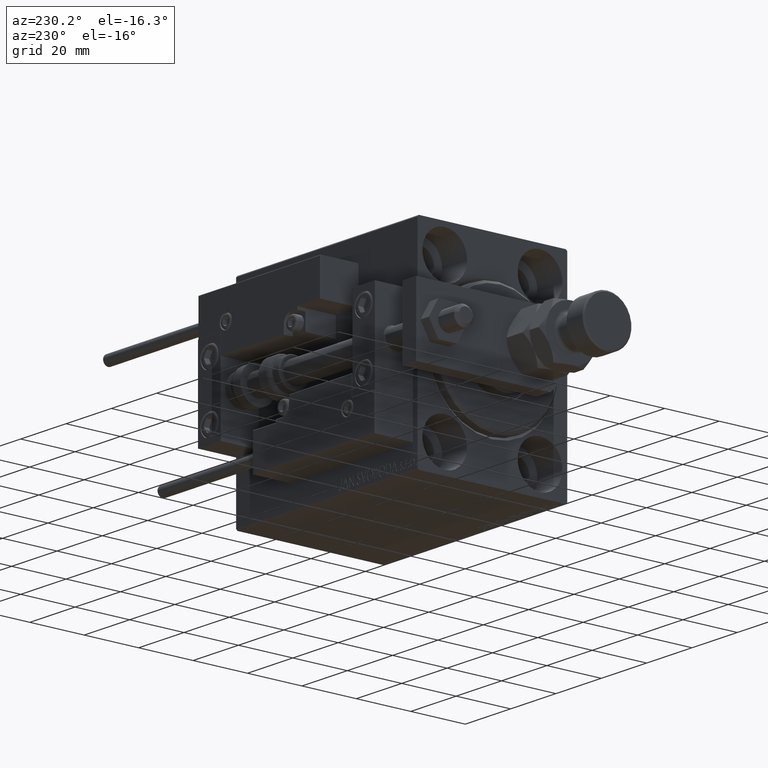
[diagram: clean part render]
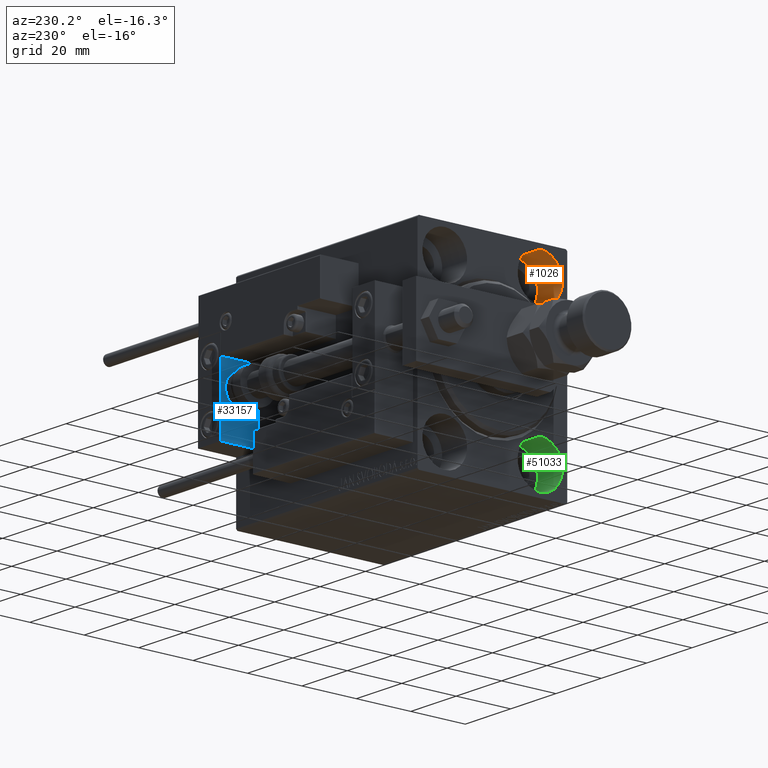
[diagram: same view with three faces highlighted in distinct colors, each labeled with its STEP entity id]
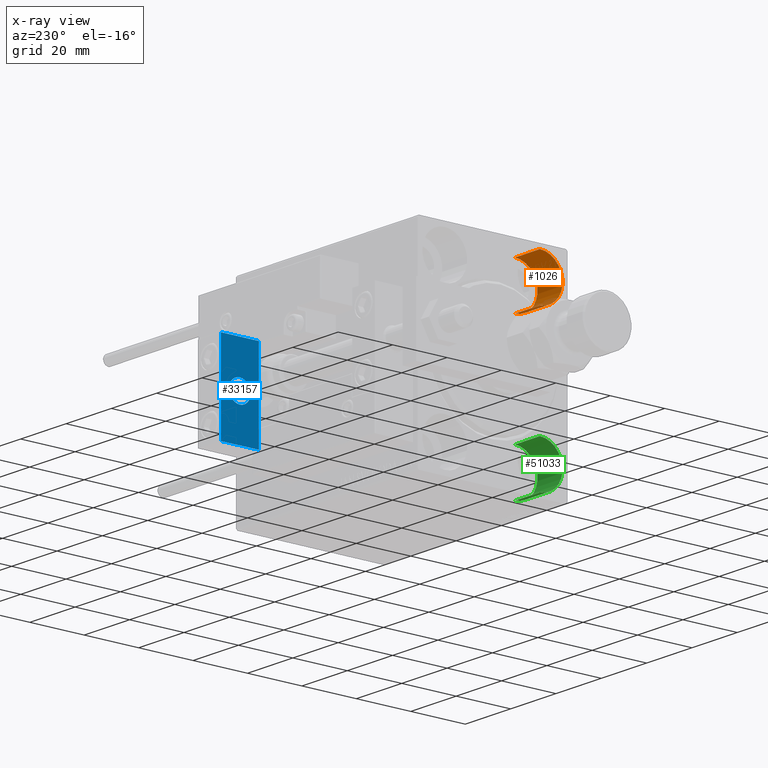
[diagram: x-ray of the same camera — body ghosted, the three highlighted faces saturated]
A machine part, auxiliary view with three faces highlighted in distinct colors.
The next image is the same camera in x-ray (body ghosted, the three faces saturated) — at least one of them is partly hidden behind the body in this view.
Their STEP definitions:

[orange] entity #1026 — the highlighted cylindrical surface (edge-blend (fillet) strip) has radius 8.25 mm, axis along (-1, -0, -0).
#713 = CARTESIAN_POINT ( 'NONE',  ( 0.000000000000000000, -17.49999999999999645, 19.25000000000000000 ) ) ;
#1026 = ADVANCED_FACE ( 'NONE', ( #40162 ), #43573, .F. ) ;
#1872 = DIRECTION ( 'NONE',  ( 0.000000000000000000, 0.000000000000000000, 1.000000000000000000 ) ) ;
#1965 = EDGE_LOOP ( 'NONE', ( #43594, #42676, #22659, #44982 ) ) ;
#4449 = DIRECTION ( 'NONE',  ( -1.000000000000000000, -0.000000000000000000, -0.000000000000000000 ) ) ;
#4582 = VERTEX_POINT ( 'NONE', #713 ) ;
#6257 = EDGE_CURVE ( 'NONE', #10211, #37629, #7334, .T. ) ;
#6563 = CARTESIAN_POINT ( 'NONE',  ( 11.00000000000000000, -17.49999999999999645, 27.49999999999999645 ) ) ;
#7262 = DIRECTION ( 'NONE',  ( 0.000000000000000000, 0.000000000000000000, 1.000000000000000000 ) ) ;
#7315 = VERTEX_POINT ( 'NONE', #41829 ) ;
#7334 = CIRCLE ( 'NONE', #36469, 8.249999999999992895 ) ;
#9970 = AXIS2_PLACEMENT_3D ( 'NONE', #44336, #4449, #16432 ) ;
#10211 = VERTEX_POINT ( 'NONE', #47728 ) ;
#10552 = EDGE_CURVE ( 'NONE', #4582, #7315, #42399, .T. ) ;
#13339 = LINE ( 'NONE', #20893, #49046 ) ;
#14555 = DIRECTION ( 'NONE',  ( -1.000000000000000000, 0.000000000000000000, 0.000000000000000000 ) ) ;
#16432 = DIRECTION ( 'NONE',  ( 0.000000000000000000, 0.000000000000000000, 1.000000000000000000 ) ) ;
#17510 = DIRECTION ( 'NONE',  ( -1.000000000000000000, -0.000000000000000000, -0.000000000000000000 ) ) ;
#20893 = CARTESIAN_POINT ( 'NONE',  ( 11.00000000000000000, -17.49999999999999645, 19.25000000000000000 ) ) ;
#22436 = EDGE_CURVE ( 'NONE', #37629, #7315, #32173, .T. ) ;
#22659 = ORIENTED_EDGE ( 'NONE', *, *, #10552, .T. ) ;
#26814 = CARTESIAN_POINT ( 'NONE',  ( 0.000000000000000000, -17.49999999999999645, 27.49999999999999645 ) ) ;
#28009 = CARTESIAN_POINT ( 'NONE',  ( 11.00000000000000000, -17.49999999999999645, 35.74999999999999289 ) ) ;
#32173 = LINE ( 'NONE', #28009, #32666 ) ;
#32666 = VECTOR ( 'NONE', #43662, 1000.000000000000000 ) ;
#36469 = AXIS2_PLACEMENT_3D ( 'NONE', #6563, #37588, #1872 ) ;
#36531 = AXIS2_PLACEMENT_3D ( 'NONE', #26814, #14555, #7262 ) ;
#37588 = DIRECTION ( 'NONE',  ( -1.000000000000000000, 0.000000000000000000, 0.000000000000000000 ) ) ;
#37629 = VERTEX_POINT ( 'NONE', #46553 ) ;
#40162 = FACE_OUTER_BOUND ( 'NONE', #1965, .T. ) ;
#41829 = CARTESIAN_POINT ( 'NONE',  ( 0.000000000000000000, -17.49999999999999645, 35.74999999999999289 ) ) ;
#42399 = CIRCLE ( 'NONE', #36531, 8.249999999999992895 ) ;
#42676 = ORIENTED_EDGE ( 'NONE', *, *, #49542, .T. ) ;
#43573 = CYLINDRICAL_SURFACE ( 'NONE', #9970, 8.249999999999992895 ) ;
#43594 = ORIENTED_EDGE ( 'NONE', *, *, #6257, .F. ) ;
#43662 = DIRECTION ( 'NONE',  ( -1.000000000000000000, -0.000000000000000000, -0.000000000000000000 ) ) ;
#44336 = CARTESIAN_POINT ( 'NONE',  ( 11.00000000000000000, -17.49999999999999645, 27.49999999999999645 ) ) ;
#44982 = ORIENTED_EDGE ( 'NONE', *, *, #22436, .F. ) ;
#46553 = CARTESIAN_POINT ( 'NONE',  ( 11.00000000000000000, -17.49999999999999645, 35.74999999999999289 ) ) ;
#47728 = CARTESIAN_POINT ( 'NONE',  ( 11.00000000000000000, -17.49999999999999645, 19.25000000000000000 ) ) ;
#49046 = VECTOR ( 'NONE', #17510, 1000.000000000000000 ) ;
#49542 = EDGE_CURVE ( 'NONE', #10211, #4582, #13339, .T. ) ;

[blue] entity #33157 — the highlighted planar face has unit normal (-1, 0, 0).
#2189 = ORIENTED_EDGE ( 'NONE', *, *, #7358, .F. ) ;
#3702 = CARTESIAN_POINT ( 'NONE',  ( 0.000000000000000000, 0.000000000000000000, 4.000000000000000000 ) ) ;
#3840 = EDGE_CURVE ( 'NONE', #41724, #19627, #17435, .T. ) ;
#4818 = LINE ( 'NONE', #20713, #24851 ) ;
#4950 = VECTOR ( 'NONE', #39962, 1000.000000000000000 ) ;
#7144 = EDGE_CURVE ( 'NONE', #40522, #22566, #4818, .T. ) ;
#7358 = EDGE_CURVE ( 'NONE', #48467, #38126, #48185, .T. ) ;
#7959 = ORIENTED_EDGE ( 'NONE', *, *, #12319, .T. ) ;
#8189 = CIRCLE ( 'NONE', #43189, 4.000000000000000000 ) ;
#8464 = ORIENTED_EDGE ( 'NONE', *, *, #3840, .F. ) ;
#8647 = DIRECTION ( 'NONE',  ( -0.000000000000000000, 0.000000000000000000, 1.000000000000000000 ) ) ;
#8901 = FACE_BOUND ( 'NONE', #12180, .T. ) ;
#10766 = DIRECTION ( 'NONE',  ( 0.000000000000000000, -1.000000000000000000, 0.000000000000000000 ) ) ;
#12180 = EDGE_LOOP ( 'NONE', ( #15831, #2189 ) ) ;
#12319 = EDGE_CURVE ( 'NONE', #22566, #19627, #48326, .T. ) ;
#12600 = CARTESIAN_POINT ( 'NONE',  ( 0.000000000000000000, 7.000000000000000000, -16.00000000000000711 ) ) ;
#12995 = CARTESIAN_POINT ( 'NONE',  ( 0.000000000000000000, -7.000000000000000000, -16.00000000000000711 ) ) ;
#13096 = EDGE_CURVE ( 'NONE', #40522, #41724, #30044, .T. ) ;
#15749 = VECTOR ( 'NONE', #34289, 1000.000000000000000 ) ;
#15831 = ORIENTED_EDGE ( 'NONE', *, *, #49882, .F. ) ;
#16275 = CARTESIAN_POINT ( 'NONE',  ( 0.000000000000000000, -7.000000000000000000, 15.99999999999999289 ) ) ;
#16905 = ORIENTED_EDGE ( 'NONE', *, *, #7144, .T. ) ;
#17435 = LINE ( 'NONE', #37504, #15749 ) ;
#17554 = CARTESIAN_POINT ( 'NONE',  ( 0.000000000000000000, 7.000000000000000000, 15.99999999999999289 ) ) ;
#17840 = DIRECTION ( 'NONE',  ( 0.000000000000000000, 0.000000000000000000, 1.000000000000000000 ) ) ;
#18527 = CARTESIAN_POINT ( 'NONE',  ( 0.000000000000000000, 7.000000000000000000, -16.00000000000000711 ) ) ;
#19358 = CARTESIAN_POINT ( 'NONE',  ( 0.000000000000000000, 4.898587196589412829E-16, -4.000000000000000000 ) ) ;
#19627 = VERTEX_POINT ( 'NONE', #12995 ) ;
#20713 = CARTESIAN_POINT ( 'NONE',  ( 0.000000000000000000, 7.000000000000000000, 15.99999999999999289 ) ) ;
#22566 = VERTEX_POINT ( 'NONE', #18527 ) ;
#24149 = VECTOR ( 'NONE', #10766, 1000.000000000000000 ) ;
#24851 = VECTOR ( 'NONE', #28799, 1000.000000000000000 ) ;
#25566 = CARTESIAN_POINT ( 'NONE',  ( 0.000000000000000000, 0.000000000000000000, 0.000000000000000000 ) ) ;
#26210 = AXIS2_PLACEMENT_3D ( 'NONE', #25566, #48547, #8647 ) ;
#28799 = DIRECTION ( 'NONE',  ( 0.000000000000000000, 0.000000000000000000, -1.000000000000000000 ) ) ;
#29110 = ORIENTED_EDGE ( 'NONE', *, *, #13096, .F. ) ;
#30044 = LINE ( 'NONE', #17554, #24149 ) ;
#30830 = CARTESIAN_POINT ( 'NONE',  ( 0.000000000000000000, 0.000000000000000000, 0.000000000000000000 ) ) ;
#32880 = PLANE ( 'NONE',  #26210 ) ;
#33157 = ADVANCED_FACE ( 'NONE', ( #8901, #37301 ), #32880, .T. ) ;
#34289 = DIRECTION ( 'NONE',  ( 0.000000000000000000, 0.000000000000000000, -1.000000000000000000 ) ) ;
#36921 = CARTESIAN_POINT ( 'NONE',  ( 0.000000000000000000, 7.000000000000000000, 15.99999999999999289 ) ) ;
#37301 = FACE_OUTER_BOUND ( 'NONE', #46098, .T. ) ;
#37362 = AXIS2_PLACEMENT_3D ( 'NONE', #41052, #49925, #17840 ) ;
#37504 = CARTESIAN_POINT ( 'NONE',  ( 0.000000000000000000, -7.000000000000000000, 15.99999999999999289 ) ) ;
#38126 = VERTEX_POINT ( 'NONE', #3702 ) ;
#38916 = DIRECTION ( 'NONE',  ( -1.000000000000000000, -0.000000000000000000, -0.000000000000000000 ) ) ;
#39962 = DIRECTION ( 'NONE',  ( 0.000000000000000000, -1.000000000000000000, 0.000000000000000000 ) ) ;
#40522 = VERTEX_POINT ( 'NONE', #36921 ) ;
#41052 = CARTESIAN_POINT ( 'NONE',  ( 0.000000000000000000, 0.000000000000000000, 0.000000000000000000 ) ) ;
#41724 = VERTEX_POINT ( 'NONE', #16275 ) ;
#43189 = AXIS2_PLACEMENT_3D ( 'NONE', #30830, #38916, #50934 ) ;
#46098 = EDGE_LOOP ( 'NONE', ( #8464, #29110, #16905, #7959 ) ) ;
#48185 = CIRCLE ( 'NONE', #37362, 4.000000000000000000 ) ;
#48326 = LINE ( 'NONE', #12600, #4950 ) ;
#48467 = VERTEX_POINT ( 'NONE', #19358 ) ;
#48547 = DIRECTION ( 'NONE',  ( -1.000000000000000000, 0.000000000000000000, -0.000000000000000000 ) ) ;
#49882 = EDGE_CURVE ( 'NONE', #38126, #48467, #8189, .T. ) ;
#49925 = DIRECTION ( 'NONE',  ( -1.000000000000000000, -0.000000000000000000, -0.000000000000000000 ) ) ;
#50934 = DIRECTION ( 'NONE',  ( 0.000000000000000000, 0.000000000000000000, 1.000000000000000000 ) ) ;

[green] entity #51033 — the highlighted cylindrical surface (edge-blend (fillet) strip) has radius 8.25 mm, axis along (-1, -0, -0).
#1978 = DIRECTION ( 'NONE',  ( -1.000000000000000000, 0.000000000000000000, 0.000000000000000000 ) ) ;
#2526 = VERTEX_POINT ( 'NONE', #18187 ) ;
#3502 = VERTEX_POINT ( 'NONE', #33122 ) ;
#4858 = CARTESIAN_POINT ( 'NONE',  ( 0.000000000000000000, -17.50000000000000355, -35.75000000000000711 ) ) ;
#6037 = FACE_OUTER_BOUND ( 'NONE', #31214, .T. ) ;
#6146 = DIRECTION ( 'NONE',  ( 0.000000000000000000, 0.000000000000000000, 1.000000000000000000 ) ) ;
#15786 = EDGE_CURVE ( 'NONE', #2526, #40482, #16095, .T. ) ;
#16095 = LINE ( 'NONE', #32005, #38398 ) ;
#16246 = DIRECTION ( 'NONE',  ( -1.000000000000000000, -0.000000000000000000, -0.000000000000000000 ) ) ;
#18187 = CARTESIAN_POINT ( 'NONE',  ( 11.00000000000000000, -17.50000000000000355, -35.75000000000000711 ) ) ;
#19033 = VECTOR ( 'NONE', #16246, 1000.000000000000000 ) ;
#19743 = AXIS2_PLACEMENT_3D ( 'NONE', #41617, #1978, #44501 ) ;
#21772 = DIRECTION ( 'NONE',  ( -1.000000000000000000, 0.000000000000000000, 0.000000000000000000 ) ) ;
#24326 = LINE ( 'NONE', #36059, #19033 ) ;
#25137 = CARTESIAN_POINT ( 'NONE',  ( 0.000000000000000000, -17.50000000000000355, -19.25000000000000355 ) ) ;
#25584 = CYLINDRICAL_SURFACE ( 'NONE', #29881, 8.250000000000000000 ) ;
#26095 = DIRECTION ( 'NONE',  ( 0.000000000000000000, 0.000000000000000000, 1.000000000000000000 ) ) ;
#29881 = AXIS2_PLACEMENT_3D ( 'NONE', #41486, #48828, #26095 ) ;
#30419 = ORIENTED_EDGE ( 'NONE', *, *, #41572, .F. ) ;
#31214 = EDGE_LOOP ( 'NONE', ( #30419, #32885, #34893, #35674 ) ) ;
#32005 = CARTESIAN_POINT ( 'NONE',  ( 11.00000000000000000, -17.50000000000000355, -35.75000000000000711 ) ) ;
#32304 = AXIS2_PLACEMENT_3D ( 'NONE', #37436, #21772, #6146 ) ;
#32885 = ORIENTED_EDGE ( 'NONE', *, *, #15786, .T. ) ;
#33055 = CIRCLE ( 'NONE', #19743, 8.250000000000000000 ) ;
#33122 = CARTESIAN_POINT ( 'NONE',  ( 11.00000000000000000, -17.50000000000000355, -19.25000000000000355 ) ) ;
#34758 = VERTEX_POINT ( 'NONE', #25137 ) ;
#34893 = ORIENTED_EDGE ( 'NONE', *, *, #48168, .T. ) ;
#35660 = CIRCLE ( 'NONE', #32304, 8.250000000000000000 ) ;
#35674 = ORIENTED_EDGE ( 'NONE', *, *, #46781, .F. ) ;
#36059 = CARTESIAN_POINT ( 'NONE',  ( 11.00000000000000000, -17.50000000000000355, -19.25000000000000355 ) ) ;
#37436 = CARTESIAN_POINT ( 'NONE',  ( 0.000000000000000000, -17.50000000000000355, -27.50000000000000355 ) ) ;
#38398 = VECTOR ( 'NONE', #44515, 1000.000000000000000 ) ;
#40482 = VERTEX_POINT ( 'NONE', #4858 ) ;
#41486 = CARTESIAN_POINT ( 'NONE',  ( 11.00000000000000000, -17.50000000000000355, -27.50000000000000355 ) ) ;
#41572 = EDGE_CURVE ( 'NONE', #2526, #3502, #33055, .T. ) ;
#41617 = CARTESIAN_POINT ( 'NONE',  ( 11.00000000000000000, -17.50000000000000355, -27.50000000000000355 ) ) ;
#44501 = DIRECTION ( 'NONE',  ( 0.000000000000000000, 0.000000000000000000, 1.000000000000000000 ) ) ;
#44515 = DIRECTION ( 'NONE',  ( -1.000000000000000000, -0.000000000000000000, -0.000000000000000000 ) ) ;
#46781 = EDGE_CURVE ( 'NONE', #3502, #34758, #24326, .T. ) ;
#48168 = EDGE_CURVE ( 'NONE', #40482, #34758, #35660, .T. ) ;
#48828 = DIRECTION ( 'NONE',  ( -1.000000000000000000, -0.000000000000000000, -0.000000000000000000 ) ) ;
#51033 = ADVANCED_FACE ( 'NONE', ( #6037 ), #25584, .F. ) ;